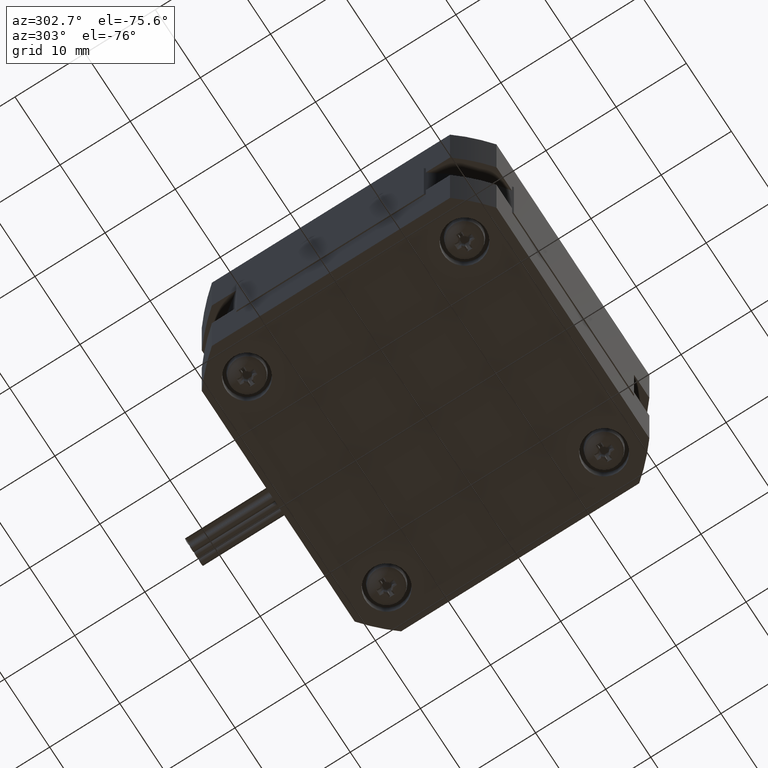
[diagram: clean part render]
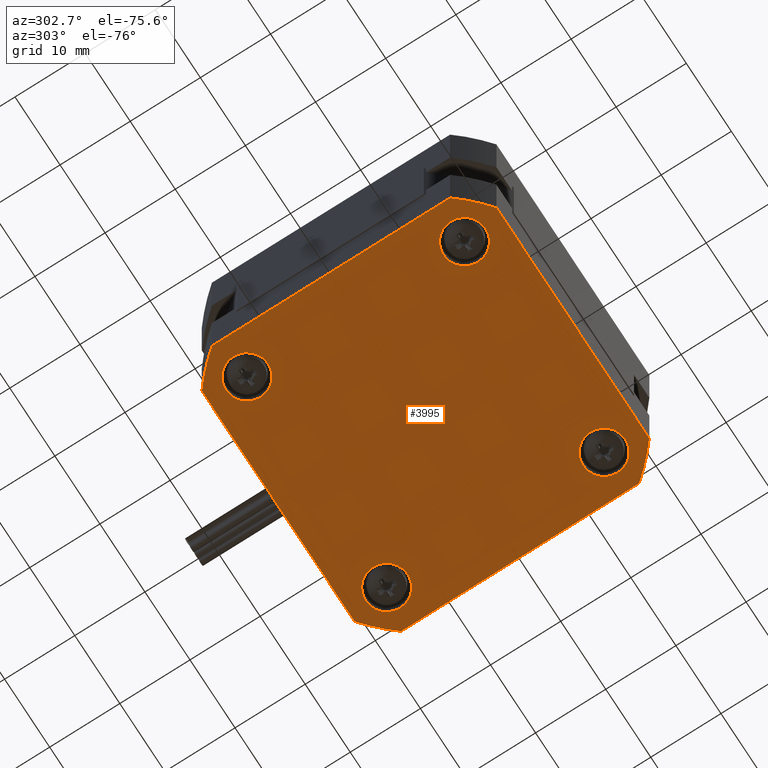
[diagram: same view with one face highlighted and labeled with its STEP entity id]
A machine part, auxiliary view. The second image highlights one B-rep face of the part: STEP entity #3995.
In plain terms, the highlighted planar face has unit normal (-0, -0, -1).
Its self-contained STEP definition (entity closure, byte-faithful):
#176=LINE('',#6216,#424);
#186=LINE('',#6244,#434);
#188=LINE('',#6250,#436);
#189=LINE('',#6254,#437);
#424=VECTOR('',#4979,33.9411254969543);
#434=VECTOR('',#5007,33.9411254969543);
#436=VECTOR('',#5013,33.9411254969543);
#437=VECTOR('',#5016,33.9411254969543);
#640=PLANE('',#4316);
#764=FACE_BOUND('',#1208,.T.);
#765=FACE_BOUND('',#1209,.T.);
#766=FACE_BOUND('',#1210,.T.);
#767=FACE_BOUND('',#1211,.T.);
#925=FACE_OUTER_BOUND('',#1207,.T.);
#1207=EDGE_LOOP('',(#2861,#2862,#2863,#2864,#2865,#2866,#2867,#2868));
#1208=EDGE_LOOP('',(#2869));
#1209=EDGE_LOOP('',(#2870));
#1210=EDGE_LOOP('',(#2871));
#1211=EDGE_LOOP('',(#2872));
#1505=CIRCLE('',#4317,27.);
#1506=CIRCLE('',#4318,27.);
#1507=CIRCLE('',#4319,27.);
#1508=CIRCLE('',#4320,27.);
#1509=CIRCLE('',#4321,3.);
#1510=CIRCLE('',#4322,3.);
#1511=CIRCLE('',#4323,3.);
#1512=CIRCLE('',#4324,3.);
#1768=VERTEX_POINT('',#6213);
#1769=VERTEX_POINT('',#6215);
#1777=VERTEX_POINT('',#6241);
#1778=VERTEX_POINT('',#6243);
#1779=VERTEX_POINT('',#6247);
#1780=VERTEX_POINT('',#6249);
#1781=VERTEX_POINT('',#6251);
#1782=VERTEX_POINT('',#6253);
#1783=VERTEX_POINT('',#6257);
#1784=VERTEX_POINT('',#6259);
#1785=VERTEX_POINT('',#6261);
#1786=VERTEX_POINT('',#6263);
#2187=EDGE_CURVE('',#1768,#1769,#176,.T.);
#2201=EDGE_CURVE('',#1777,#1778,#186,.T.);
#2203=EDGE_CURVE('',#1779,#1777,#1505,.T.);
#2204=EDGE_CURVE('',#1780,#1779,#188,.T.);
#2205=EDGE_CURVE('',#1781,#1780,#1506,.T.);
#2206=EDGE_CURVE('',#1782,#1781,#189,.T.);
#2207=EDGE_CURVE('',#1769,#1782,#1507,.T.);
#2208=EDGE_CURVE('',#1778,#1768,#1508,.T.);
#2209=EDGE_CURVE('',#1783,#1783,#1509,.T.);
#2210=EDGE_CURVE('',#1784,#1784,#1510,.T.);
#2211=EDGE_CURVE('',#1785,#1785,#1511,.T.);
#2212=EDGE_CURVE('',#1786,#1786,#1512,.T.);
#2861=ORIENTED_EDGE('',*,*,#2201,.F.);
#2862=ORIENTED_EDGE('',*,*,#2203,.F.);
#2863=ORIENTED_EDGE('',*,*,#2204,.F.);
#2864=ORIENTED_EDGE('',*,*,#2205,.F.);
#2865=ORIENTED_EDGE('',*,*,#2206,.F.);
#2866=ORIENTED_EDGE('',*,*,#2207,.F.);
#2867=ORIENTED_EDGE('',*,*,#2187,.F.);
#2868=ORIENTED_EDGE('',*,*,#2208,.F.);
#2869=ORIENTED_EDGE('',*,*,#2209,.T.);
#2870=ORIENTED_EDGE('',*,*,#2210,.T.);
#2871=ORIENTED_EDGE('',*,*,#2211,.T.);
#2872=ORIENTED_EDGE('',*,*,#2212,.T.);
#3995=ADVANCED_FACE('',(#925,#764,#765,#766,#767),#640,.T.);
#4316=AXIS2_PLACEMENT_3D('',#6246,#5009,#5010);
#4317=AXIS2_PLACEMENT_3D('',#6248,#5011,#5012);
#4318=AXIS2_PLACEMENT_3D('',#6252,#5014,#5015);
#4319=AXIS2_PLACEMENT_3D('',#6255,#5017,#5018);
#4320=AXIS2_PLACEMENT_3D('',#6256,#5019,#5020);
#4321=AXIS2_PLACEMENT_3D('',#6258,#5021,#5022);
#4322=AXIS2_PLACEMENT_3D('',#6260,#5023,#5024);
#4323=AXIS2_PLACEMENT_3D('',#6262,#5025,#5026);
#4324=AXIS2_PLACEMENT_3D('',#6264,#5027,#5028);
#4979=DIRECTION('',(-2.98562173248195E-16,1.,-9.20284061180318E-21));
#5007=DIRECTION('',(1.,2.98562173248195E-16,-9.034635156321E-16));
#5009=DIRECTION('center_axis',(-9.034635156321E-16,-9.20284061207292E-21,
-1.));
#5010=DIRECTION('ref_axis',(1.,2.98562173248195E-16,-1.06581410364015E-15));
#5011=DIRECTION('center_axis',(9.034635156321E-16,9.20284061207292E-21,
1.));
#5012=DIRECTION('ref_axis',(0.628539361054709,0.777777777777778,-5.67869538616561E-16));
#5013=DIRECTION('',(2.98562173248195E-16,-1.,9.20284061180318E-21));
#5014=DIRECTION('center_axis',(9.034635156321E-16,9.20284061207292E-21,
1.));
#5015=DIRECTION('ref_axis',(0.777777777777778,-0.628539361054708,-7.02688061144075E-16));
#5016=DIRECTION('',(-1.,-2.98562173248195E-16,9.034635156321E-16));
#5017=DIRECTION('center_axis',(9.034635156321E-16,9.20284061207292E-21,
1.));
#5018=DIRECTION('ref_axis',(-0.628539361054709,-0.777777777777778,5.67869538616561E-16));
#5019=DIRECTION('center_axis',(9.034635156321E-16,9.20284061207292E-21,
1.));
#5020=DIRECTION('ref_axis',(-0.777777777777778,0.628539361054709,7.02688061144075E-16));
#5021=DIRECTION('center_axis',(9.034635156321E-16,9.20284061207292E-21,
1.));
#5022=DIRECTION('ref_axis',(1.,2.98562173248195E-16,-9.034635156321E-16));
#5023=DIRECTION('center_axis',(9.034635156321E-16,9.20284061207292E-21,
1.));
#5024=DIRECTION('ref_axis',(1.,2.98562173248195E-16,-9.034635156321E-16));
#5025=DIRECTION('center_axis',(9.034635156321E-16,9.20284061207292E-21,
1.));
#5026=DIRECTION('ref_axis',(1.,2.98562173248195E-16,-9.034635156321E-16));
#5027=DIRECTION('center_axis',(9.034635156321E-16,9.20284061207292E-21,
1.));
#5028=DIRECTION('ref_axis',(1.,2.98562173248195E-16,-9.034635156321E-16));
#6213=CARTESIAN_POINT('',(21.,-16.9705627484771,-24.5));
#6215=CARTESIAN_POINT('',(21.,16.9705627484772,-24.5));
#6216=CARTESIAN_POINT('',(21.,-16.9705627484771,-24.5));
#6241=CARTESIAN_POINT('',(-16.9705627484771,-21.,-24.5));
#6243=CARTESIAN_POINT('',(16.9705627484771,-21.,-24.5));
#6244=CARTESIAN_POINT('',(-16.9705627484771,-21.,-24.5));
#6246=CARTESIAN_POINT('Origin',(-2.99083411815525E-14,8.58027083688262E-15,
-24.5));
#6247=CARTESIAN_POINT('',(-21.,-16.9705627484771,-24.5));
#6248=CARTESIAN_POINT('Origin',(-2.40796701815525E-14,8.02515933688262E-15,
-24.5));
#6249=CARTESIAN_POINT('',(-21.,16.9705627484771,-24.5));
#6250=CARTESIAN_POINT('',(-21.,16.9705627484771,-24.5));
#6251=CARTESIAN_POINT('',(-16.9705627484772,21.,-24.5));
#6252=CARTESIAN_POINT('Origin',(-2.40796701815525E-14,8.02515933688262E-15,
-24.5));
#6253=CARTESIAN_POINT('',(16.9705627484771,21.,-24.5));
#6254=CARTESIAN_POINT('',(16.9705627484771,21.,-24.5));
#6255=CARTESIAN_POINT('Origin',(-2.40796701815525E-14,8.02515933688262E-15,
-24.5));
#6256=CARTESIAN_POINT('Origin',(-2.40796701815525E-14,8.02515933688262E-15,
-24.5));
#6257=CARTESIAN_POINT('',(-12.5,-15.5,-24.5));
#6258=CARTESIAN_POINT('Origin',(-15.5,-15.5,-24.5));
#6259=CARTESIAN_POINT('',(18.5,-15.5,-24.5));
#6260=CARTESIAN_POINT('Origin',(15.5,-15.5,-24.5));
#6261=CARTESIAN_POINT('',(-12.5,15.5,-24.5));
#6262=CARTESIAN_POINT('Origin',(-15.5,15.5,-24.5));
#6263=CARTESIAN_POINT('',(18.5,15.5,-24.5));
#6264=CARTESIAN_POINT('Origin',(15.5,15.5,-24.5));